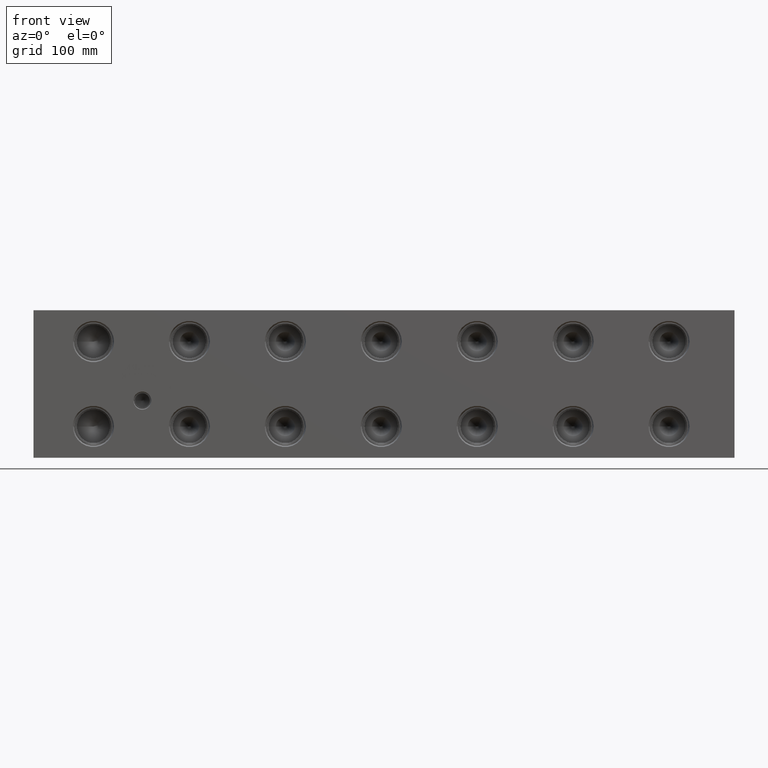
[diagram: clean part render]
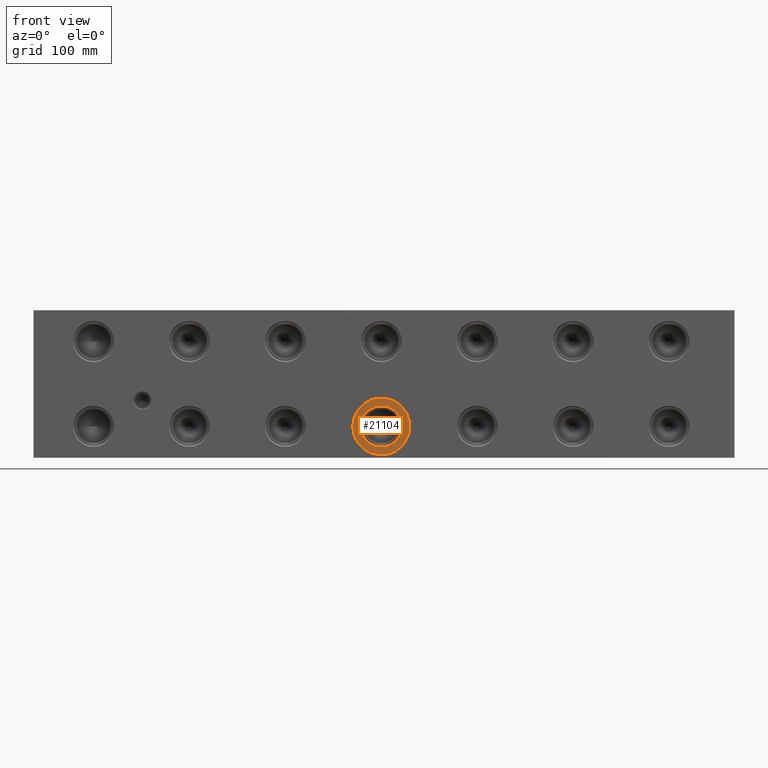
[diagram: same view with one face highlighted and labeled with its STEP entity id]
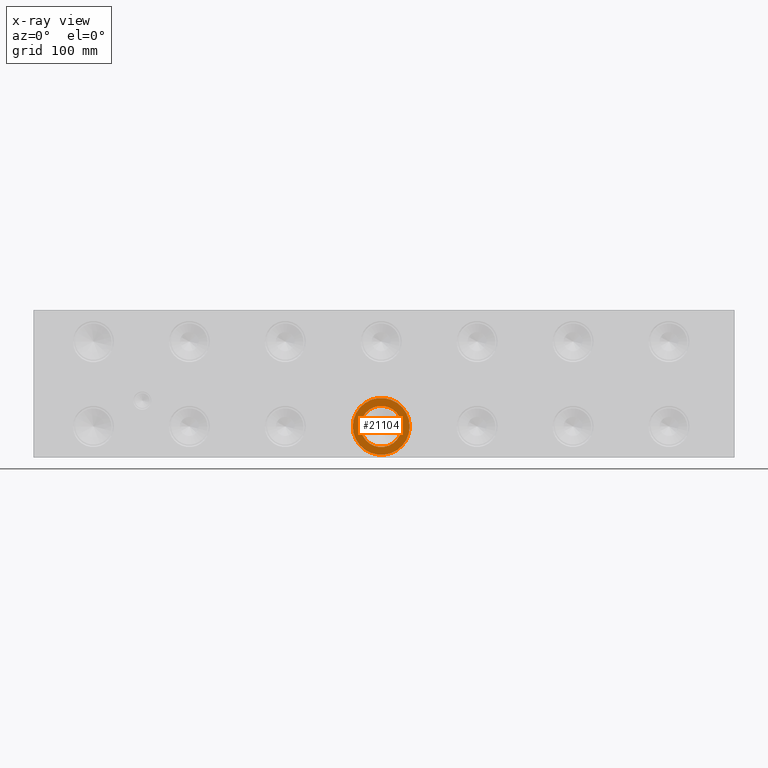
[diagram: x-ray of the same camera — body ghosted, the highlighted face saturated]
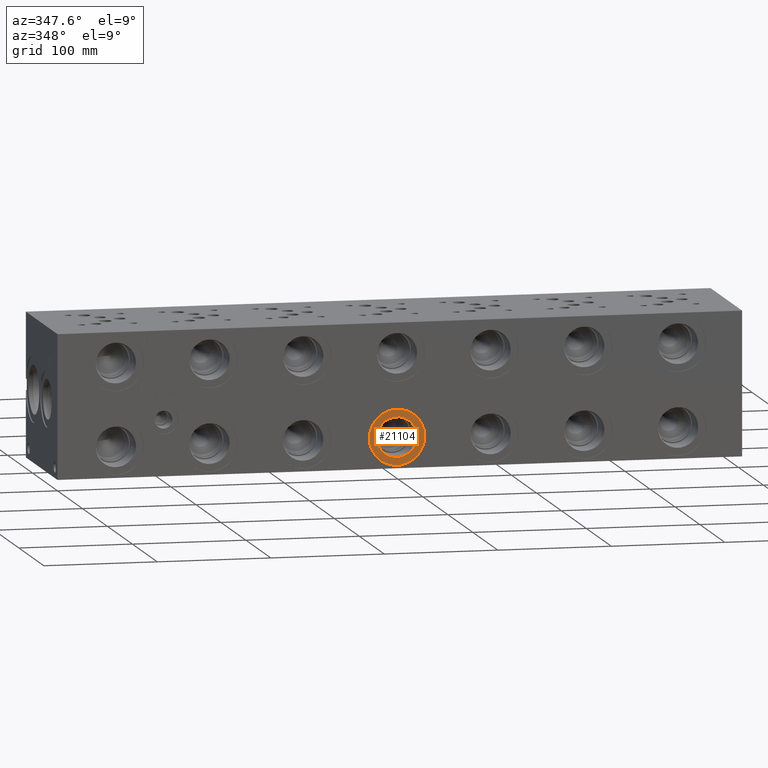
[diagram: same view with one face highlighted and labeled with its STEP entity id]
A machine part, front view. The second image highlights one B-rep face of the part: STEP entity #21104.
The next image is the same camera in x-ray: the body ghosted, the highlighted face saturated — about 0% of this face is hidden behind the body in this view.
A second angle (auxiliary view) of the same face is appended — the face is thin or edge-on in the first view.
In plain terms, the highlighted planar face has unit normal (0, -1, 0).
Its self-contained STEP definition (entity closure, byte-faithful):
#610=CIRCLE('',#22246,24.4856);
#611=CIRCLE('',#22247,24.4856);
#612=CIRCLE('',#22248,17.7546);
#1242=FACE_BOUND('',#4087,.T.);
#2845=FACE_OUTER_BOUND('',#4086,.T.);
#4086=EDGE_LOOP('',(#17429,#17430));
#4087=EDGE_LOOP('',(#17431));
#9570=VERTEX_POINT('',#35622);
#9571=VERTEX_POINT('',#35623);
#9572=VERTEX_POINT('',#35626);
#12350=EDGE_CURVE('',#9570,#9571,#610,.T.);
#12351=EDGE_CURVE('',#9571,#9570,#611,.T.);
#12352=EDGE_CURVE('',#9572,#9572,#612,.T.);
#17429=ORIENTED_EDGE('',*,*,#12350,.T.);
#17430=ORIENTED_EDGE('',*,*,#12351,.T.);
#17431=ORIENTED_EDGE('',*,*,#12352,.F.);
#19593=PLANE('',#22245);
#21104=ADVANCED_FACE('',(#2845,#1242),#19593,.T.);
#22245=AXIS2_PLACEMENT_3D('',#35621,#26188,#26189);
#22246=AXIS2_PLACEMENT_3D('',#35624,#26190,#26191);
#22247=AXIS2_PLACEMENT_3D('',#35625,#26192,#26193);
#22248=AXIS2_PLACEMENT_3D('',#35627,#26194,#26195);
#26188=DIRECTION('center_axis',(0.,-1.,0.));
#26189=DIRECTION('ref_axis',(1.,0.,0.));
#26190=DIRECTION('center_axis',(0.,-1.,0.));
#26191=DIRECTION('ref_axis',(1.,0.,0.));
#26192=DIRECTION('center_axis',(0.,-1.,0.));
#26193=DIRECTION('ref_axis',(1.,0.,0.));
#26194=DIRECTION('center_axis',(0.,-1.,0.));
#26195=DIRECTION('ref_axis',(1.,0.,0.));
#35621=CARTESIAN_POINT('Origin',(299.2374,0.7874,26.9748));
#35622=CARTESIAN_POINT('',(323.723,0.7874,26.9748));
#35623=CARTESIAN_POINT('',(274.7518,0.7874,26.9748));
#35624=CARTESIAN_POINT('Origin',(299.2374,0.7874,26.9748));
#35625=CARTESIAN_POINT('Origin',(299.2374,0.7874,26.9748));
#35626=CARTESIAN_POINT('',(281.4828,0.7874,26.9748));
#35627=CARTESIAN_POINT('Origin',(299.2374,0.7874,26.9748));